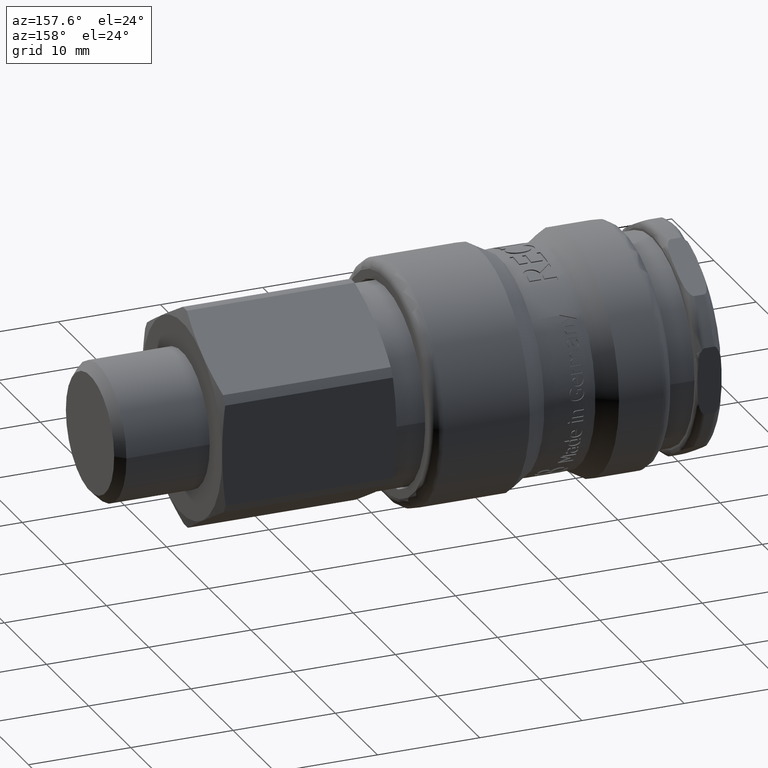
[diagram: clean part render]
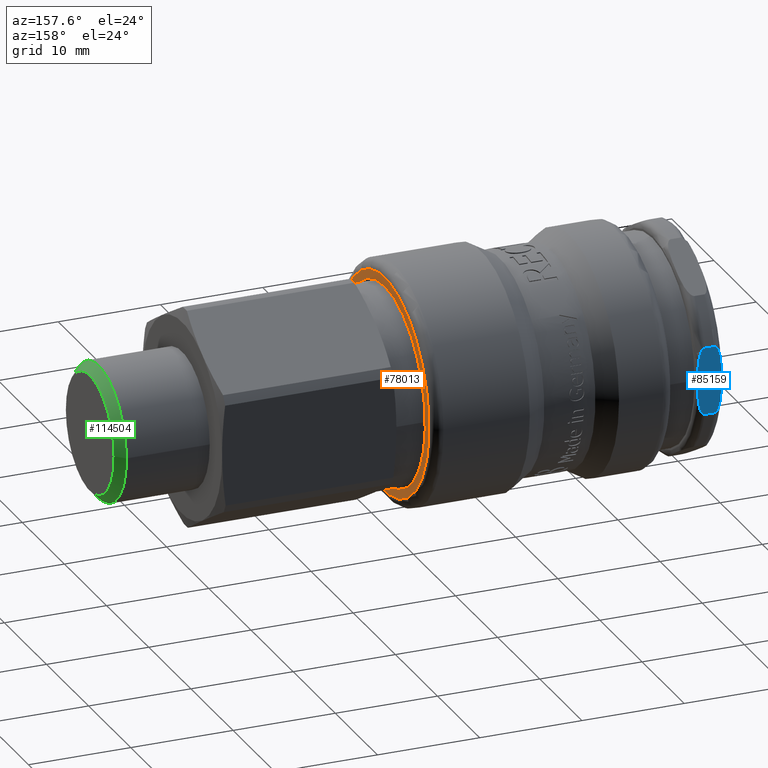
[diagram: same view with three faces highlighted in distinct colors, each labeled with its STEP entity id]
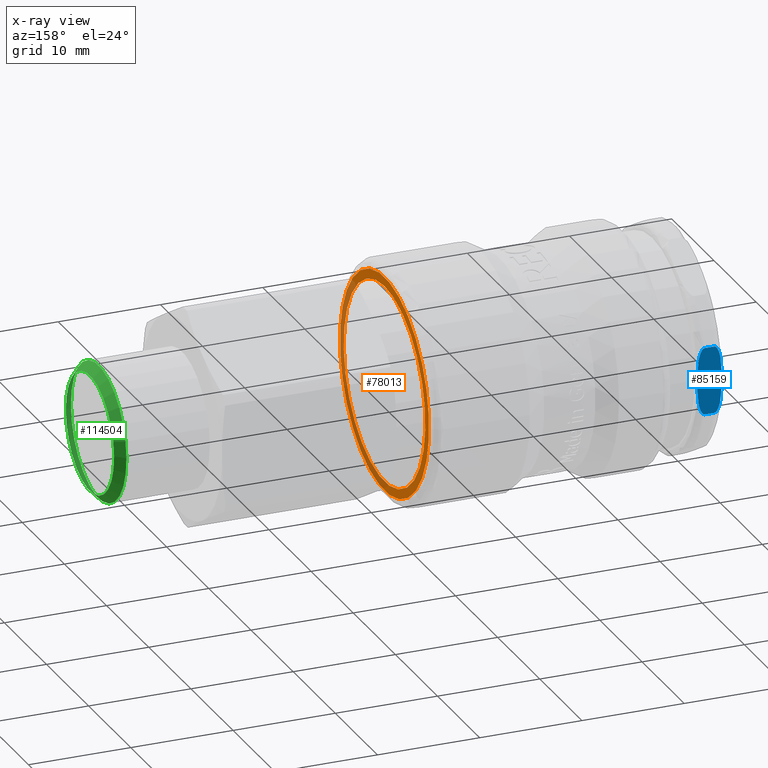
[diagram: x-ray of the same camera — body ghosted, the three highlighted faces saturated]
A machine part, auxiliary view with three faces highlighted in distinct colors.
The next image is the same camera in x-ray (body ghosted, the three faces saturated) — at least one of them is partly hidden behind the body in this view.
Their STEP definitions:

[orange] entity #78013 — the highlighted planar face has unit normal (1, 0, 0).
#77971=CARTESIAN_POINT('',(28.700000000000006,1.178712183940442,-10.509103795635017));
#77972=VERTEX_POINT('',#77971);
#77973=CARTESIAN_POINT('',(28.700000000000006,0.0,0.0));
#77974=DIRECTION('',(1.000000000000000,0.0,0.0));
#77975=DIRECTION('',(0.0,0.111462145053470,-0.993768680438300));
#77976=AXIS2_PLACEMENT_3D('',#77973,#77974,#77975);
#77977=CIRCLE('',#77976,10.574999999999998);
#77978=EDGE_CURVE('',#77972,#77972,#77977,.T.);
#77994=CARTESIAN_POINT('',(28.700000000000006,1.128554218666380,-10.061907889437784));
#77995=DIRECTION('',(1.0,0.0,0.0));
#77996=DIRECTION('',(0.0,-0.993768680438300,-0.111462145053470));
#77997=AXIS2_PLACEMENT_3D('',#77994,#77995,#77996);
#77998=PLANE('',#77997);
#77999=ORIENTED_EDGE('',*,*,#77978,.T.);
#78000=EDGE_LOOP('',(#77999));
#78001=FACE_OUTER_BOUND('',#78000,.T.);
#78002=CARTESIAN_POINT('',(28.700000000000006,1.078396253392320,-9.614711983240550));
#78003=VERTEX_POINT('',#78002);
#78004=CARTESIAN_POINT('',(28.700000000000006,0.0,0.0));
#78005=DIRECTION('',(1.0,0.0,0.0));
#78006=DIRECTION('',(0.0,0.111462145053470,-0.993768680438300));
#78007=AXIS2_PLACEMENT_3D('',#78004,#78005,#78006);
#78008=CIRCLE('',#78007,9.675000000000001);
#78009=EDGE_CURVE('',#78003,#78003,#78008,.T.);
#78010=ORIENTED_EDGE('',*,*,#78009,.F.);
#78011=EDGE_LOOP('',(#78010));
#78012=FACE_BOUND('',#78011,.T.);
#78013=ADVANCED_FACE('',(#78001,#78012),#77998,.T.);

[blue] entity #85159 — the highlighted planar face has unit normal (0, -1, 0).
#85073=CARTESIAN_POINT('',(2.638902385721328,10.500000000000000,0.0));
#85074=DIRECTION('',(0.0,-1.0,0.0));
#85075=DIRECTION('',(0.0,0.0,-1.0));
#85076=AXIS2_PLACEMENT_3D('',#85073,#85074,#85075);
#85077=PLANE('',#85076);
#85078=CARTESIAN_POINT('',(0.800000000000000,10.500000000000000,3.278719262151002));
#85079=VERTEX_POINT('',#85078);
#85080=CARTESIAN_POINT('',(0.800000000000000,10.500000000000000,-3.278719262151002));
#85081=VERTEX_POINT('',#85080);
#85082=CARTESIAN_POINT('',(0.800000000000000,10.500000000000000,3.278719262151002));
#85083=CARTESIAN_POINT('',(0.777895532084730,10.500000000000000,3.278719262151002));
#85084=CARTESIAN_POINT('',(0.751665617805483,10.500000000000000,3.274771300712472));
#85085=CARTESIAN_POINT('',(0.706034173954644,10.500000000000000,3.261374599091508));
#85086=CARTESIAN_POINT('',(0.678365053849385,10.500000000000000,3.248439310874967));
#85087=CARTESIAN_POINT('',(0.589002555618166,10.500000000000000,3.193187925023129));
#85088=CARTESIAN_POINT('',(0.527394977988852,10.500000000000000,3.120173886764250));
#85089=CARTESIAN_POINT('',(0.396761492080231,10.500000000000000,2.919047819138348));
#85090=CARTESIAN_POINT('',(0.330435911178501,10.500000000000000,2.738591631614820));
#85091=CARTESIAN_POINT('',(0.174245442307715,10.500000000000000,2.191493105213071));
#85092=CARTESIAN_POINT('',(0.126032054088559,10.499999999999998,1.749150668261575));
#85093=CARTESIAN_POINT('',(0.066641311369341,10.499999999999998,0.857870751619870));
#85094=CARTESIAN_POINT('',(0.058380151290434,10.500000000000000,0.408741346034070));
#85095=CARTESIAN_POINT('',(0.058380151290434,10.500000000000000,0.0));
#85096=CARTESIAN_POINT('',(0.058380151290434,10.500000000000000,-0.408741346034070));
#85097=CARTESIAN_POINT('',(0.066641311369341,10.499999999999998,-0.857870751619870));
#85098=CARTESIAN_POINT('',(0.126032054088559,10.499999999999998,-1.749150668261575));
#85099=CARTESIAN_POINT('',(0.174245442307715,10.500000000000000,-2.191493105213071));
#85100=CARTESIAN_POINT('',(0.330435911178501,10.500000000000000,-2.738591631614820));
#85101=CARTESIAN_POINT('',(0.396761492080231,10.500000000000000,-2.919047819138348));
#85102=CARTESIAN_POINT('',(0.527394977988852,10.500000000000000,-3.120173886764250));
#85103=CARTESIAN_POINT('',(0.589002555618166,10.500000000000000,-3.193187925023129));
#85104=CARTESIAN_POINT('',(0.678365053849385,10.500000000000000,-3.248439310874967));
#85105=CARTESIAN_POINT('',(0.706034173954644,10.500000000000000,-3.261374599091508));
#85106=CARTESIAN_POINT('',(0.751665617805483,10.500000000000000,-3.274771300712472));
#85107=CARTESIAN_POINT('',(0.777895532084730,10.500000000000000,-3.278719262151002));
#85108=CARTESIAN_POINT('',(0.800000000000000,10.500000000000000,-3.278719262151002));
#85109=B_SPLINE_CURVE_WITH_KNOTS('',3,(#85082,#85083,#85084,#85085,#85086,#85087,#85088,#85089,#85090,#85091,#85092,#85093,#85094,#85095,#85096,#85097,#85098,#85099,#85100,#85101,#85102,#85103,#85104,#85105,#85106,#85107,#85108),.UNSPECIFIED.,.F.,.U.,(4,2,2,2,2,2,3,2,2,2,2,2,4),(-0.331459991565857,-0.324828651191277,-0.317192790529880,-0.293309554510366,-0.245244807620442,-0.122622403810221,0.0,0.122622403810221,0.245244807620442,0.293309554510366,0.317192790529879,0.324828651191276,0.331459991565857),.UNSPECIFIED.);
#85110=EDGE_CURVE('',#85079,#85081,#85109,.T.);
#85111=ORIENTED_EDGE('',*,*,#85110,.F.);
#85112=CARTESIAN_POINT('',(1.699999999999999,10.500000000000000,3.278719262151002));
#85113=VERTEX_POINT('',#85112);
#85114=CARTESIAN_POINT('',(1.699999999999999,10.500000000000000,3.278719262151002));
#85115=DIRECTION('',(-1.0,0.0,0.0));
#85116=VECTOR('',#85115,0.899999999999999);
#85117=LINE('',#85114,#85116);
#85118=EDGE_CURVE('',#85113,#85079,#85117,.T.);
#85119=ORIENTED_EDGE('',*,*,#85118,.F.);
#85120=CARTESIAN_POINT('',(1.699999999999999,10.500000000000000,-3.278719262151002));
#85121=VERTEX_POINT('',#85120);
#85122=CARTESIAN_POINT('',(1.699999999999999,10.500000000000000,-3.278719262151002));
#85123=CARTESIAN_POINT('',(1.722104467915269,10.500000000000000,-3.278719262151002));
#85124=CARTESIAN_POINT('',(1.748334382194516,10.500000000000000,-3.274771300712473));
#85125=CARTESIAN_POINT('',(1.793965826045355,10.500000000000000,-3.261374599091508));
#85126=CARTESIAN_POINT('',(1.821634946150615,10.500000000000000,-3.248439310874967));
#85127=CARTESIAN_POINT('',(1.910997444381833,10.500000000000000,-3.193187925023128));
#85128=CARTESIAN_POINT('',(1.972605022011147,10.500000000000000,-3.120173886764250));
#85129=CARTESIAN_POINT('',(2.103238507919768,10.500000000000000,-2.919047819138348));
#85130=CARTESIAN_POINT('',(2.169564088821498,10.500000000000000,-2.738591631614820));
#85131=CARTESIAN_POINT('',(2.325754557692284,10.500000000000000,-2.191493105213070));
#85132=CARTESIAN_POINT('',(2.373967945911439,10.499999999999998,-1.749150668261575));
#85133=CARTESIAN_POINT('',(2.433358688630658,10.499999999999998,-0.857870751619870));
#85134=CARTESIAN_POINT('',(2.441619848709565,10.500000000000000,-0.408741346034070));
#85135=CARTESIAN_POINT('',(2.441619848709565,10.500000000000000,0.408741346034070));
#85136=CARTESIAN_POINT('',(2.433358688630658,10.499999999999998,0.857870751619870));
#85137=CARTESIAN_POINT('',(2.373967945911439,10.499999999999998,1.749150668261575));
#85138=CARTESIAN_POINT('',(2.325754557692284,10.500000000000000,2.191493105213070));
#85139=CARTESIAN_POINT('',(2.169564088821498,10.500000000000000,2.738591631614820));
#85140=CARTESIAN_POINT('',(2.103238507919768,10.500000000000000,2.919047819138348));
#85141=CARTESIAN_POINT('',(1.972605022011147,10.500000000000000,3.120173886764250));
#85142=CARTESIAN_POINT('',(1.910997444381833,10.500000000000000,3.193187925023128));
#85143=CARTESIAN_POINT('',(1.821634946150615,10.500000000000000,3.248439310874967));
#85144=CARTESIAN_POINT('',(1.793965826045355,10.500000000000000,3.261374599091508));
#85145=CARTESIAN_POINT('',(1.748334382194516,10.500000000000000,3.274771300712473));
#85146=CARTESIAN_POINT('',(1.722104467915269,10.500000000000000,3.278719262151002));
#85147=CARTESIAN_POINT('',(1.699999999999999,10.500000000000000,3.278719262151002));
#85148=B_SPLINE_CURVE_WITH_KNOTS('',3,(#85122,#85123,#85124,#85125,#85126,#85127,#85128,#85129,#85130,#85131,#85132,#85133,#85134,#85135,#85136,#85137,#85138,#85139,#85140,#85141,#85142,#85143,#85144,#85145,#85146,#85147),.UNSPECIFIED.,.F.,.U.,(4,2,2,2,2,2,2,2,2,2,2,2,4),(0.331459991565857,0.338091331940438,0.345727192601835,0.369610428621349,0.417675175511273,0.540297579321494,0.662919983131715,0.785542386941936,0.908164790752157,0.956229537642080,0.980112773661594,0.987748634322991,0.994379974697572),.UNSPECIFIED.);
#85149=EDGE_CURVE('',#85121,#85113,#85148,.T.);
#85150=ORIENTED_EDGE('',*,*,#85149,.F.);
#85151=CARTESIAN_POINT('',(0.800000000000000,10.500000000000000,-3.278719262151002));
#85152=DIRECTION('',(1.0,0.0,0.0));
#85153=VECTOR('',#85152,0.899999999999999);
#85154=LINE('',#85151,#85153);
#85155=EDGE_CURVE('',#85081,#85121,#85154,.T.);
#85156=ORIENTED_EDGE('',*,*,#85155,.F.);
#85157=EDGE_LOOP('',(#85111,#85119,#85150,#85156));
#85158=FACE_OUTER_BOUND('',#85157,.T.);
#85159=ADVANCED_FACE('',(#85158),#85077,.F.);

[green] entity #114504 — the highlighted conical surface has half-angle 45 deg.
#114461=CARTESIAN_POINT('',(57.500000000000007,5.728102711651407,0.067465359791599));
#114462=VERTEX_POINT('',#114461);
#114463=CARTESIAN_POINT('',(57.500000000000007,0.0,0.0));
#114464=DIRECTION('',(-1.000000000000000,0.0,0.0));
#114465=DIRECTION('',(0.0,-0.999930647054448,-0.011777142322004));
#114466=AXIS2_PLACEMENT_3D('',#114463,#114464,#114465);
#114467=CIRCLE('',#114466,5.728500000000000);
#114468=EDGE_CURVE('',#114462,#114462,#114467,.T.);
#114481=CARTESIAN_POINT('',(56.650000000000006,6.578043761647688,0.077475930765304));
#114482=VERTEX_POINT('',#114481);
#114483=CARTESIAN_POINT('',(56.650000000000006,0.0,0.0));
#114484=DIRECTION('',(1.0,0.0,0.0));
#114485=DIRECTION('',(0.0,-0.999930647054448,-0.011777142322004));
#114486=AXIS2_PLACEMENT_3D('',#114483,#114484,#114485);
#114487=CIRCLE('',#114486,6.578500000000001);
#114488=EDGE_CURVE('',#114482,#114482,#114487,.T.);
#114493=CARTESIAN_POINT('',(57.075000000000003,0.0,0.0));
#114494=DIRECTION('',(-1.0,0.0,0.0));
#114495=DIRECTION('',(0.0,-0.999930647054448,-0.011777142322004));
#114496=AXIS2_PLACEMENT_3D('',#114493,#114494,#114495);
#114497=CONICAL_SURFACE('',#114496,6.153500000000001,44.999999999999979);
#114498=ORIENTED_EDGE('',*,*,#114468,.T.);
#114499=EDGE_LOOP('',(#114498));
#114500=FACE_OUTER_BOUND('',#114499,.T.);
#114501=ORIENTED_EDGE('',*,*,#114488,.T.);
#114502=EDGE_LOOP('',(#114501));
#114503=FACE_BOUND('',#114502,.T.);
#114504=ADVANCED_FACE('',(#114500,#114503),#114497,.T.);